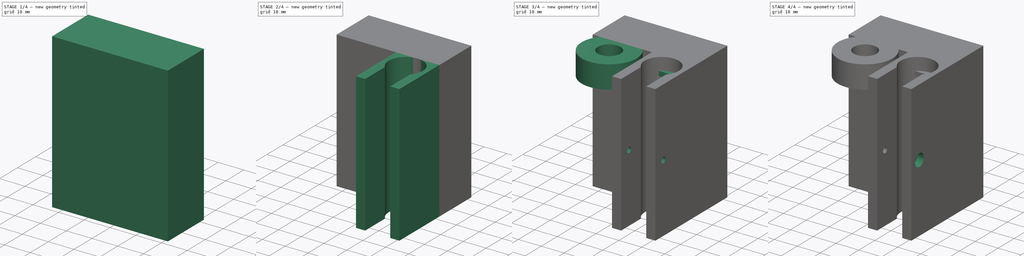
[diagram: build sequence overview — one tinted view per stage of 4, left to right]
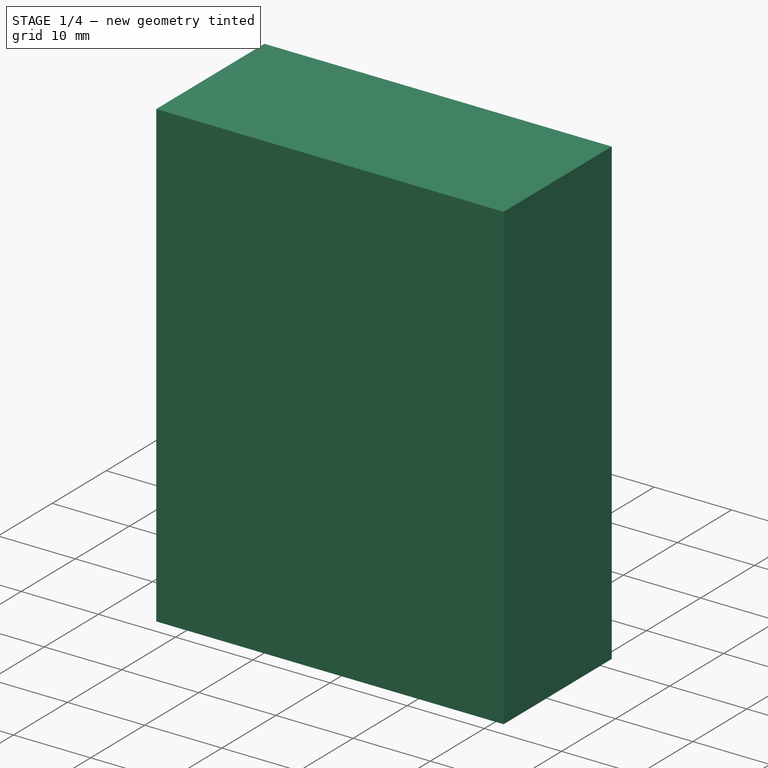
[diagram: stage 1 of 4 — iso view after this stage's code; geometry added in this stage tinted green]
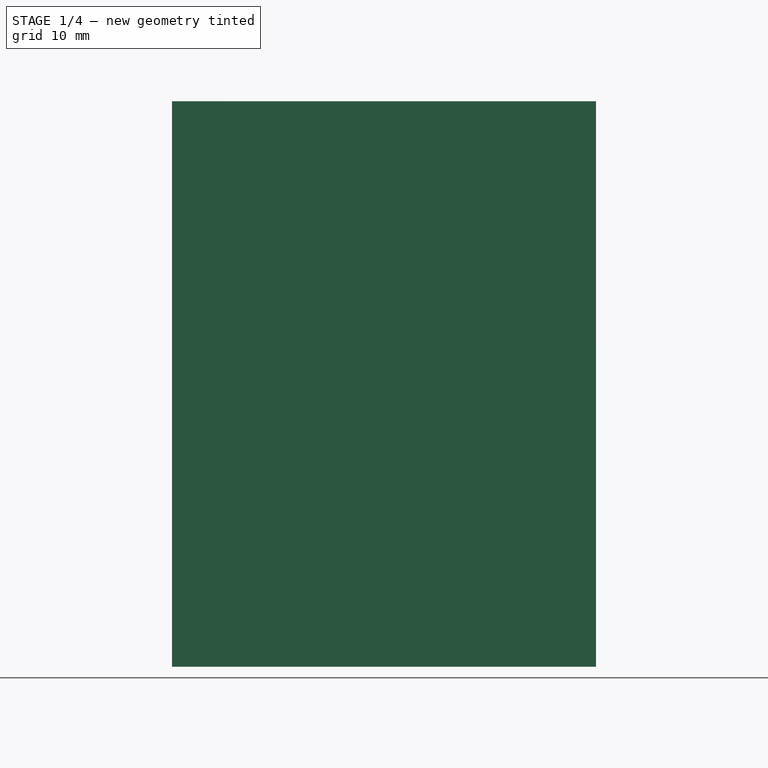
[diagram: stage 1 of 4 — front view after this stage's code; geometry added in this stage tinted green]
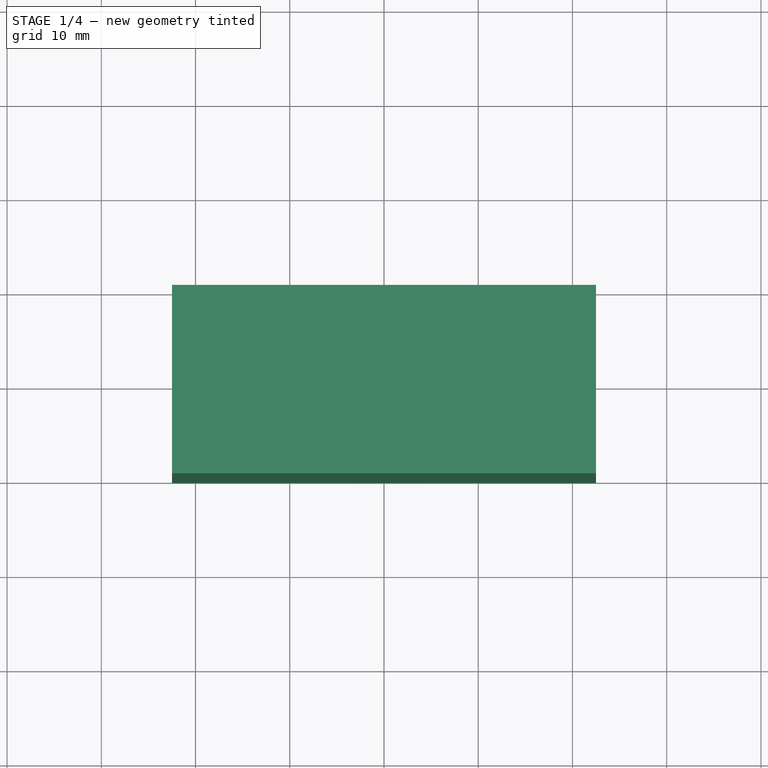
[diagram: stage 1 of 4 — top view after this stage's code; geometry added in this stage tinted green]
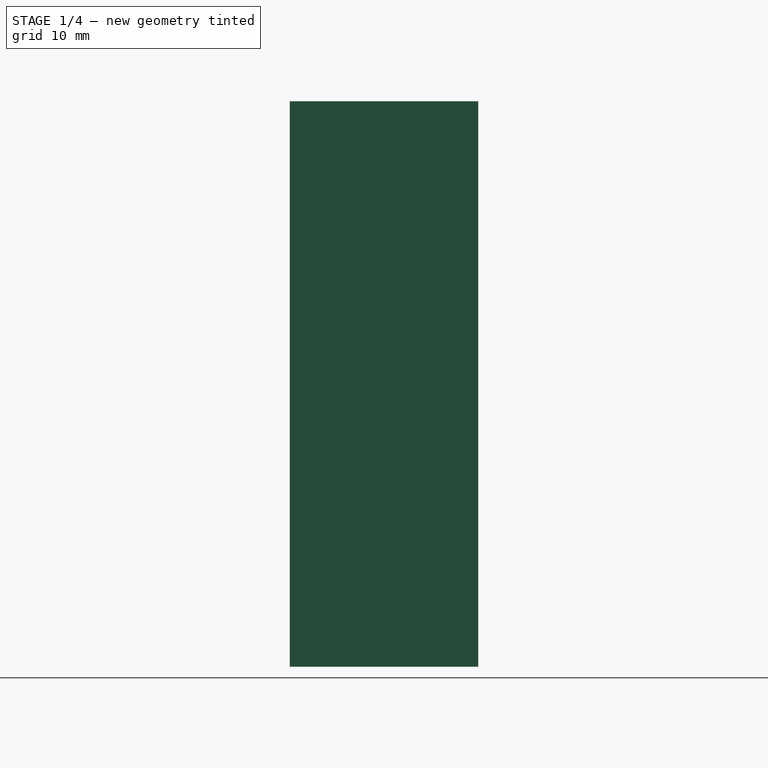
[diagram: stage 1 of 4 — right view after this stage's code; geometry added in this stage tinted green]
FCSTD DOCUMENT  (FreeCAD 0.18R4 (GitTag))
Label: ZAxisHolderRight
License: All rights reserved
LicenseURL: http://en.wikipedia.org/wiki/All_rights_reserved
objects: Sketcher::SketchObject×10, PartDesign::Pocket×6, PartDesign::Pad×4, Spreadsheet::Sheet×2, PartDesign::Body×1
note: 31 computed .brp shape members not serialized (recipe doc carries the construction recipe); baked Part::Feature solids carry a one-line shape summary decoded from their .brp

FEATURE [Sketcher::SketchObject] Sketch  label="Sketch_XAxisBox"
  MapMode = 5
  Placement = pos=(0,0,0) rot=(1,0,0;1.5708rad)
  Support = -> [XZ_Plane]
  expr: Constraints[11] = Dimensions.MainBoxHeight / 2
  expr: Constraints[10] = Dimensions.MainBoxWidth / 2
  expr: Constraints[9] = Dimensions.MainBoxHeight
  expr: Constraints[8] = Dimensions.MainBoxWidth
  sketch-geometry (4):
    g0: LineSegment StartX=-22.5 StartY=30 StartZ=0 EndX=22.5 EndY=30 EndZ=0
    g1: LineSegment StartX=22.5 StartY=30 StartZ=0 EndX=22.5 EndY=-30 EndZ=0
    g2: LineSegment StartX=22.5 StartY=-30 StartZ=0 EndX=-22.5 EndY=-30 EndZ=0
    g3: LineSegment StartX=-22.5 StartY=-30 StartZ=0 EndX=-22.5 EndY=30 EndZ=0
  constraints (12):
    c: Coincident(g0,g1)
    c: Coincident(g1,g2)
    c: Coincident(g2,g3)
    c: Coincident(g3,g0)
    c: Horizontal(g0)
    c: Horizontal(g2)
    c: Vertical(g1)
    c: Vertical(g3)
    c: DistanceX(g0,g0) = 45
    c: DistanceY(g3,g3) = 60
    c: DistanceX(g0,g-1) = 22.5
    c: DistanceY(g-1,g0) = 30
FEATURE [Spreadsheet::Sheet] Spreadsheet  label="Dimensions"
  cells = A1=MainBoxWidth; B1(MainBoxWidth)==45mm; A2=MainBoxHeight; B2(MainBoxHeight)==60mm; A3=MainBoxThickness; B3(MainBoxThickness)==20mm; A4=BeltMainBoxGapThickness; B4(BeltMainBoxGapThickness)==10mm; A5=BeltMainGapHeight; B5(BeltMainGapHeight)==20mm; A6=BeltMainGapWidth; B6(BeltMainGapWidth)==MainBoxWidth - 5mm; A7=XGuidesRadius; B7(XGuidesRadius)==4mm; A8=XGuidesSeparation; B8(XGuidesSeparation)==45mm; A9=XGuideHoleDepth; B9(XGuideHoleDepth)==MainBoxWidth - 5mm; A10=ZGuideRadius; B10(ZGuideRadius)==4mm; A11=ZGuideBoxWallThinThickness; B11(ZGuideBoxWallThinThickness)==2mm; A12=ZGuideBoxWallThickThickness; B12(ZGuideBoxWallThickThickness)==4mm; A13=ZGuideBoxWidth; B13(ZGuideBoxWidth)==LM8LUURadiusOuter * 2 + ZGuideBoxWallThinThickness * 2; A14=ZGuideBoxThickness; B14(ZGuideBoxThickness)==25mm; A15=LM8LUULength; B15(LM8LUULength)==45mm; A16=LM8LUURadiusOuter; B16(LM8LUURadiusOuter)==7.5mm; A17=LM8LUURadiusInner; B17(LM8LUURadiusInner)==4.2mm; A18=LM8LUUStopHeight; B18(LM8LUUStopHeight)==2mm; A19=LM8LUUStopThickness; B19(LM8LUUStopThickness)==2mm; A20=ZScrewRadius8mm; B20(ZScrewRadius8mm)==4mm; A21=ZScrewHolderInnerRadius; B21(ZScrewHolderInnerRadius)==5mm; A22=ZScrewHolderOuterRadius; B22(ZScrewHolderOuterRadius)==12mm; A23=ZScrewHolderHeight; B23(ZScrewHolderHeight)==10mm; A24=ZScrewToZGuideSeparation; B24(ZScrewToZGuideSeparation)==23mm; A25=ZScrewGuideToCentreOfMainBoxWidth; B25(ZScrewGuideToCentreOfMainBoxWidth)==-MainBoxWidth / 2 + ZGuideBoxWallThinThickness + LM8LUURadiusOuter + ZScrewToZGuideSeparation; A26=M3ToSide; B26(M3ToSide)==5mm
FEATURE [PartDesign::Pad] Pad  label="Pad_MainBox"
  Length = 20
  Length2 = 100
  Placement = pos=(0,0,0) rot=(1,0,0;1.5708rad)
  Profile = -> Sketch
  Type = 0
  expr: Length = Dimensions.MainBoxThickness
FEATURE [Sketcher::SketchObject] Sketch001  label="Sketch_XGuides"
  MapMode = 5
  Placement = pos=(-22.5,0,0) rot=(0.707107,0,-0.707107;3.14159rad)
  Support = -> [Pad]
  expr: Constraints[4] = Dimensions.XGuidesSeparation
  expr: Constraints[3] = Dimensions.MainBoxThickness / 2
  expr: Constraints[0] = Dimensions.XGuidesRadius
  sketch-geometry (2):
    g0: Circle CenterX=-22.5 CenterY=10 CenterZ=0 NormalX=0 NormalY=0 NormalZ=1 AngleXU=0 Radius=4
    g1: Circle CenterX=22.5 CenterY=10 CenterZ=0 NormalX=0 NormalY=0 NormalZ=1 AngleXU=0 Radius=4
  constraints (5):
    c: Radius(g0) = 4
    c: Radius(g1) = 4
    c: Symmetric(g0,g1,g-2)
    c: DistanceY(g-1,g0) = 10
    c: DistanceX(g0,g1) = 45
FEATURE [PartDesign::Pocket] Pocket  label="Pocket_XGuides"
  BaseFeature = -> Pad
  Length = 40
  Length2 = 100
  Placement = pos=(0,0,0) rot=(1,0,0;1.5708rad)
  Profile = -> Sketch001
  Type = 0
  expr: Length = Dimensions.XGuideHoleDepth
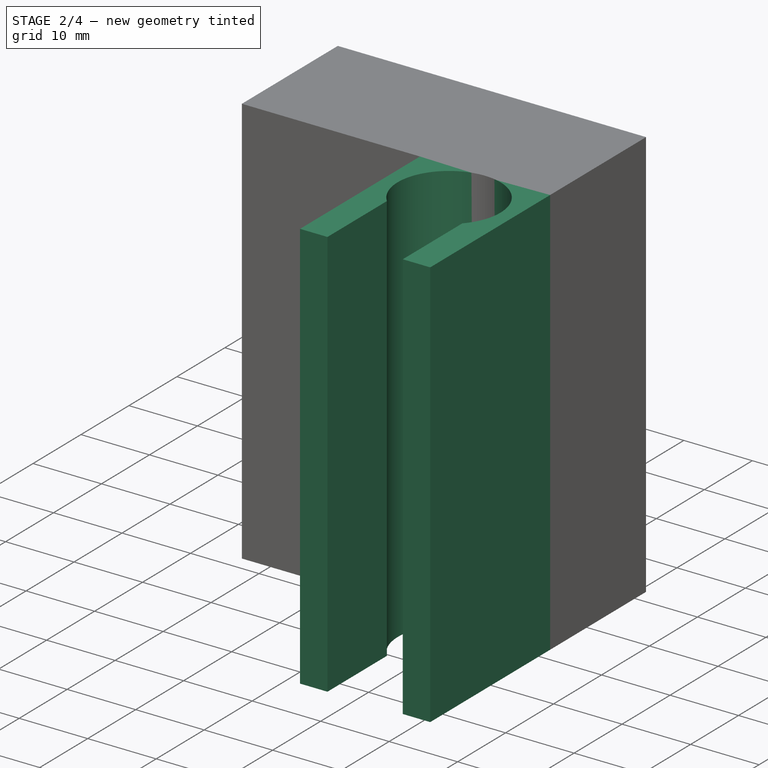
[diagram: stage 2 of 4 — iso view after this stage's code; geometry added in this stage tinted green]
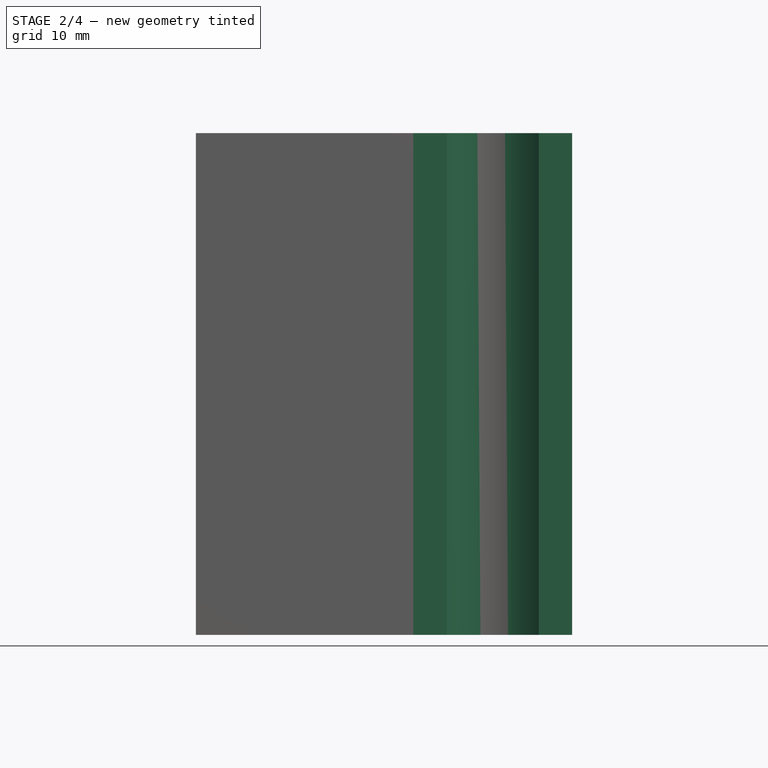
[diagram: stage 2 of 4 — front view after this stage's code; geometry added in this stage tinted green]
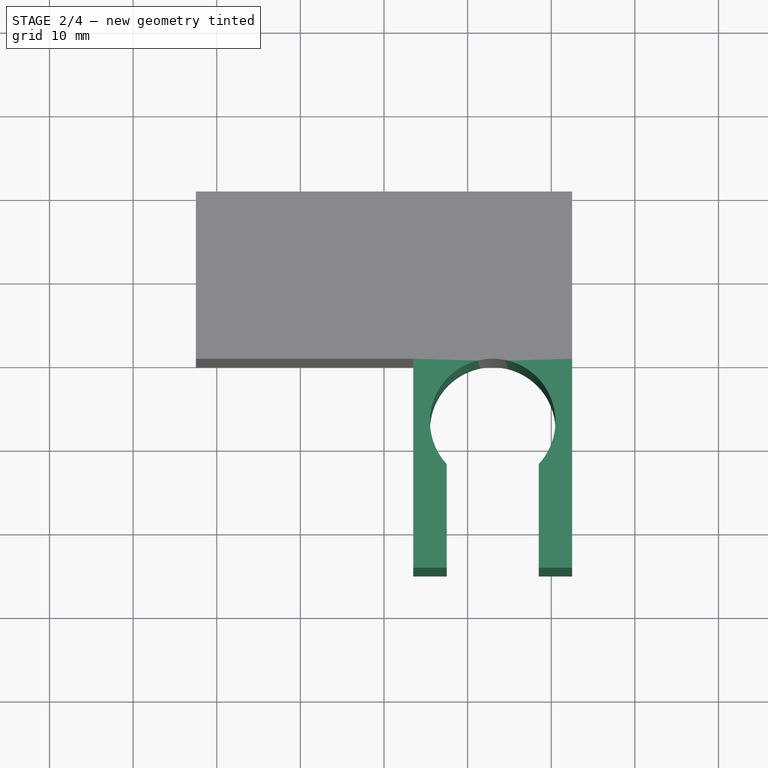
[diagram: stage 2 of 4 — top view after this stage's code; geometry added in this stage tinted green]
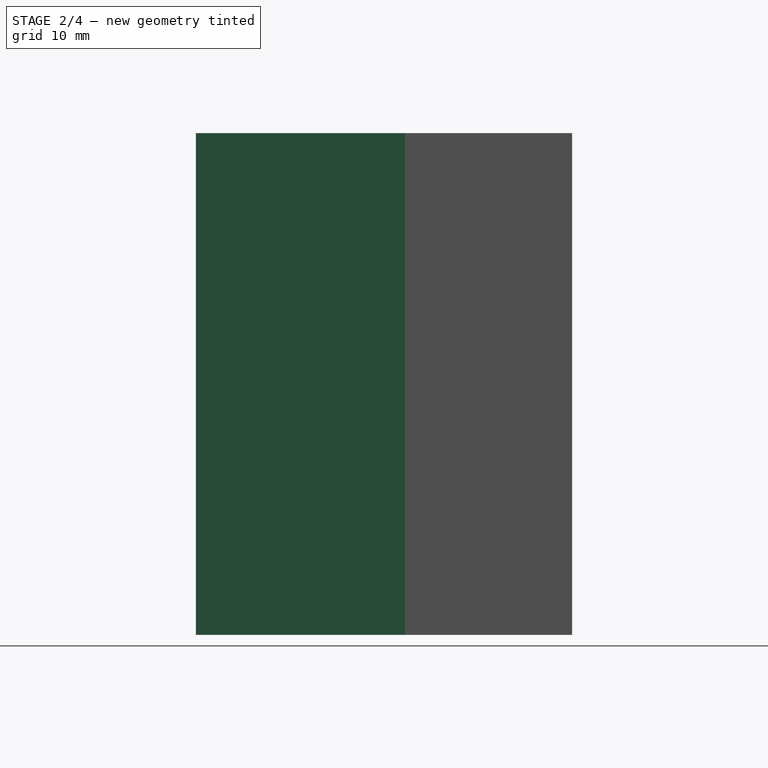
[diagram: stage 2 of 4 — right view after this stage's code; geometry added in this stage tinted green]
FEATURE [Sketcher::SketchObject] Sketch002  label="Sketch_BeltGap"
  MapMode = 5
  Placement = pos=(-22.5,0,0) rot=(0.707107,0,-0.707107;3.14159rad)
  Support = -> [Pocket]
  expr: Constraints[9] = Dimensions.BeltMainBoxGapThickness
  expr: Constraints[8] = Dimensions.BeltMainGapHeight
  sketch-geometry (4):
    g0: LineSegment StartX=-10.4624 StartY=15.4246 StartZ=0 EndX=9.53758 EndY=15.4246 EndZ=0
    g1: LineSegment StartX=9.53758 StartY=15.4246 StartZ=0 EndX=9.53758 EndY=5.42461 EndZ=0
    g2: LineSegment StartX=9.53758 StartY=5.42461 StartZ=0 EndX=-10.4624 EndY=5.42461 EndZ=0
    g3: LineSegment StartX=-10.4624 StartY=5.42461 StartZ=0 EndX=-10.4624 EndY=15.4246 EndZ=0
  constraints (10):
    c: Coincident(g0,g1)
    c: Coincident(g1,g2)
    c: Coincident(g2,g3)
    c: Coincident(g3,g0)
    c: Horizontal(g0)
    c: Horizontal(g2)
    c: Vertical(g1)
    c: Vertical(g3)
    c: DistanceX(g0,g0) = 20
    c: DistanceY(g3,g3) = 10
FEATURE [PartDesign::Pocket] Pocket001  label="Pocket_BeltGap"
  BaseFeature = -> Pocket
  Length = 40
  Length2 = 100
  Placement = pos=(0,0,0) rot=(1,0,0;1.5708rad)
  Profile = -> Sketch002
  Type = 0
  expr: Length = Dimensions.BeltMainGapWidth
FEATURE [Sketcher::SketchObject] Sketch003  label="Sketch_ZGuideBox"
  MapMode = 5
  Placement = pos=(0,-20,3.11e-14) rot=(1,0,0;1.5708rad)
  Support = -> [Pocket001]
  expr: Constraints[11] = Dimensions.MainBoxHeight / 2
  expr: Constraints[10] = Dimensions.MainBoxWidth / 2
  expr: Constraints[9] = Dimensions.ZGuideBoxWidth
  expr: Constraints[8] = Dimensions.MainBoxHeight
  sketch-geometry (4):
    g0: LineSegment StartX=3.5 StartY=30 StartZ=0 EndX=22.5 EndY=30 EndZ=0
    g1: LineSegment StartX=22.5 StartY=30 StartZ=0 EndX=22.5 EndY=-30 EndZ=0
    g2: LineSegment StartX=22.5 StartY=-30 StartZ=0 EndX=3.5 EndY=-30 EndZ=0
    g3: LineSegment StartX=3.5 StartY=-30 StartZ=0 EndX=3.5 EndY=30 EndZ=0
  constraints (12):
    c: Coincident(g0,g1)
    c: Coincident(g1,g2)
    c: Coincident(g2,g3)
    c: Coincident(g3,g0)
    c: Horizontal(g0)
    c: Horizontal(g2)
    c: Vertical(g1)
    c: Vertical(g3)
    c: DistanceY(g1,g1) = 60
    c: DistanceX(g0,g0) = 19
    c: DistanceX(g-1,g0) = 22.5
    c: DistanceY(g-1,g0) = 30
FEATURE [PartDesign::Pad] Pad001  label="Pad_ZGuideBox"
  BaseFeature = -> Pocket001
  Length = 25
  Length2 = 100
  Placement = pos=(0,0,0) rot=(1,0,0;1.5708rad)
  Profile = -> Sketch003
  Type = 0
  expr: Length = Spreadsheet.ZGuideBoxThickness
FEATURE [Sketcher::SketchObject] Sketch004  label="Sketch_LM8LUUHole"
  MapMode = 5
  Placement = pos=(0,6.66e-14,30) rot=(0,0,1;3.14159rad)
  Support = -> [Pad001]
  expr: Constraints[11] = Dimensions.MainBoxWidth / 2 - Dimensions.ZGuideBoxWallThinThickness - Dimensions.LM8LUURadiusOuter
  expr: Constraints[9] = Dimensions.MainBoxThickness + Dimensions.LM8LUURadiusOuter
  expr: Constraints[7] = Dimensions.MainBoxThickness + Dimensions.ZGuideBoxThickness
  expr: Constraints[10] = Dimensions.LM8LUURadiusOuter
  expr: Constraints[5] = Dimensions.MainBoxWidth / 2 - Dimensions.ZGuideBoxWallThickThickness
  expr: Constraints[6] = Dimensions.MainBoxWidth / 2 - Dimensions.ZGuideBoxWidth + Dimensions.ZGuideBoxWallThickThickness
  sketch-geometry (4):
    g0: LineSegment StartX=-18.5 StartY=45 StartZ=0 EndX=-7.5 EndY=45 EndZ=0
    g1: LineSegment StartX=-7.5 StartY=45 StartZ=0 EndX=-7.5 EndY=32.599 EndZ=0
    g2: LineSegment StartX=-18.5 StartY=32.599 StartZ=0 EndX=-18.5 EndY=45 EndZ=0
    g3: ArcOfCircle CenterX=-13 CenterY=27.5 CenterZ=0 NormalX=0 NormalY=0 NormalZ=1 AngleXU=0 Radius=7.5 StartAngle=2.39401 EndAngle=7.03077
  constraints (13):
    c: Coincident(g0,g1)
    c: Coincident(g2,g0)
    c: Horizontal(g0)
    c: Vertical(g1)
    c: Vertical(g2)
    c: DistanceX(g0,g-1) = 18.5
    c: DistanceX(g0,g-1) = 7.5
    c: DistanceY(g-1,g0) = 45
    c: Coincident(g3,g1)
    c: DistanceY(g-1,g3) = 27.5
    c: Radius(g3) = 7.5
    c: DistanceX(g3,g-1) = 13
    c: Coincident(g3,g2)
FEATURE [PartDesign::Pocket] Pocket002  label="Pocket_LM8LUUHole"
  BaseFeature = -> Pad001
  Length = 0
  Length2 = 100
  Placement = pos=(0,0,0) rot=(1,0,0;1.5708rad)
  Profile = -> Sketch004
  Type = 2
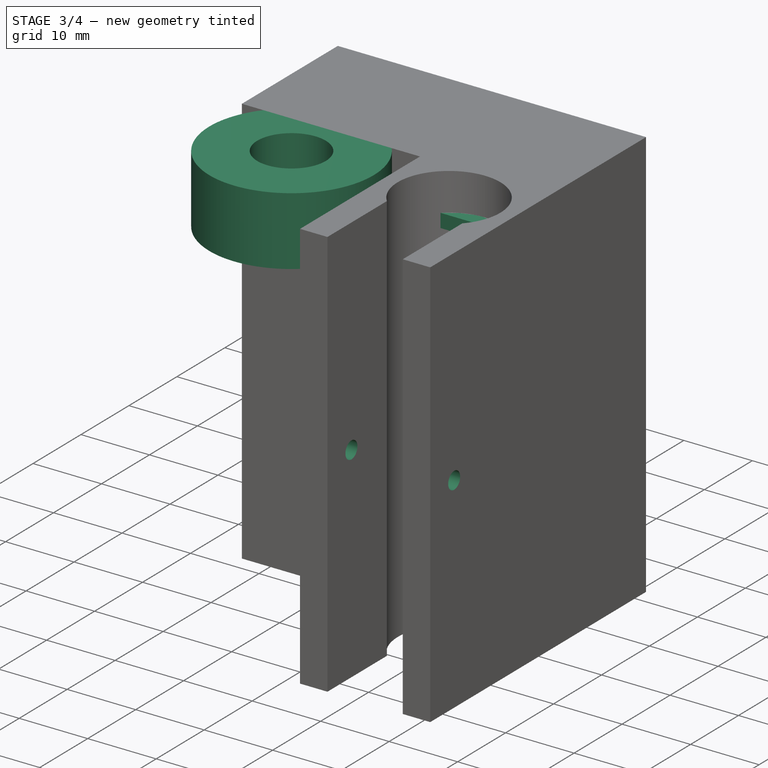
[diagram: stage 3 of 4 — iso view after this stage's code; geometry added in this stage tinted green]
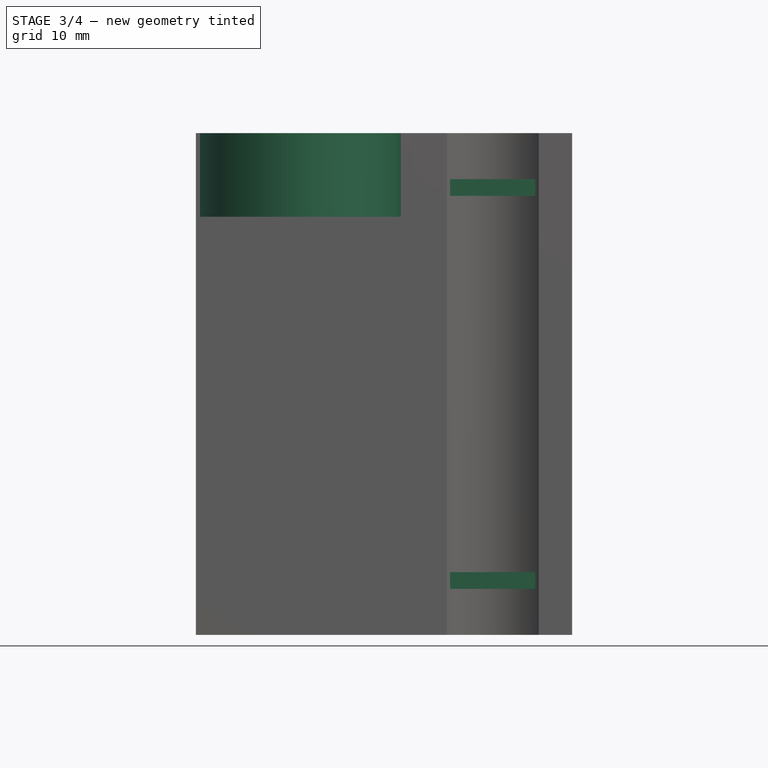
[diagram: stage 3 of 4 — front view after this stage's code; geometry added in this stage tinted green]
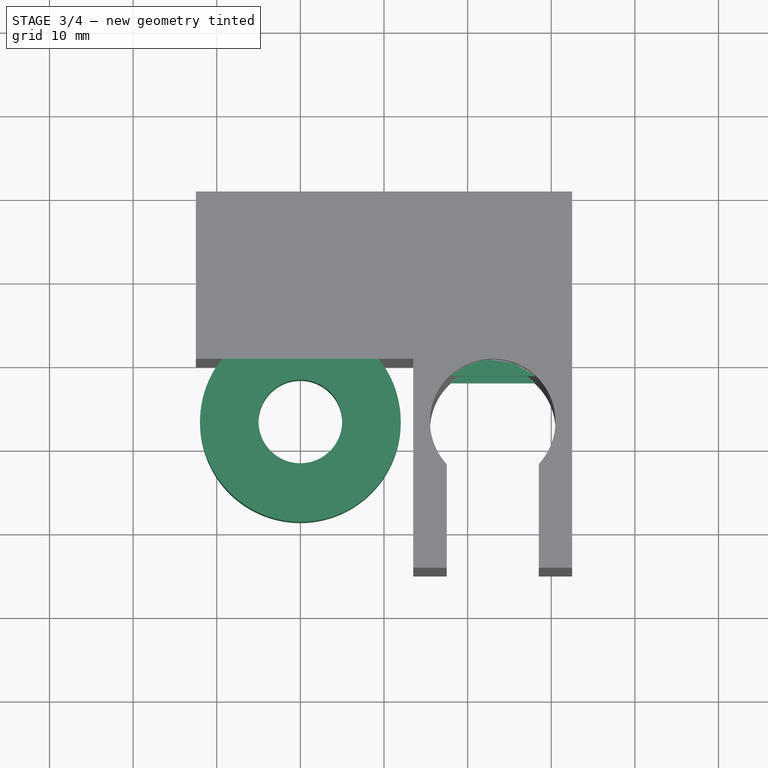
[diagram: stage 3 of 4 — top view after this stage's code; geometry added in this stage tinted green]
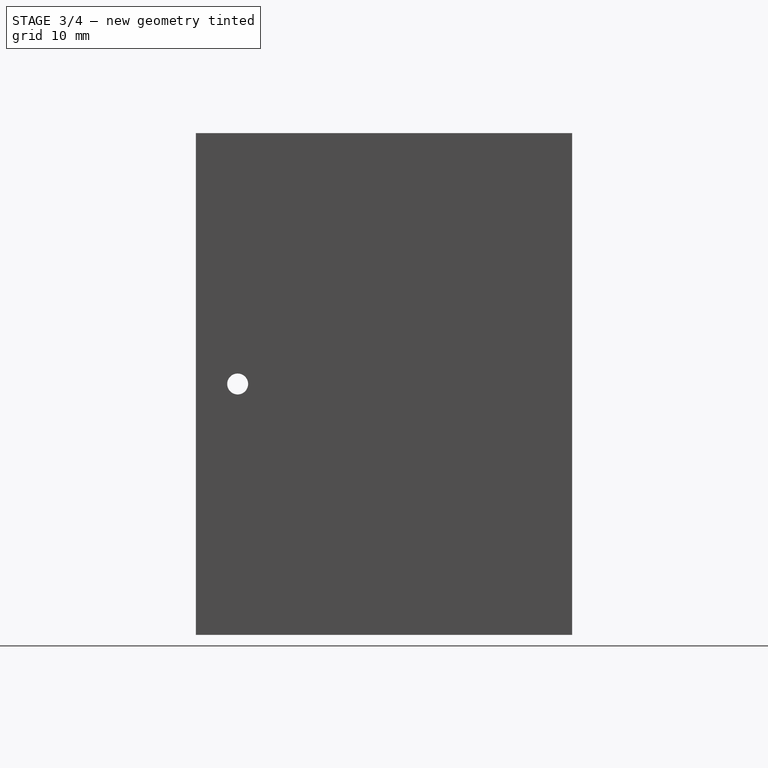
[diagram: stage 3 of 4 — right view after this stage's code; geometry added in this stage tinted green]
FEATURE [Sketcher::SketchObject] Sketch005  label="Sketch_LM8LUUStoppers"
  MapMode = 5
  Placement = pos=(0,-20,4.88e-14) rot=(1,0,0;1.5708rad)
  Support = -> [Pocket002]
  expr: Constraints[20] = Dimensions.LM8LUULength
  expr: Constraints[19] = Spreadsheet.LM8LUUStopHeight
  expr: Constraints[18] = Spreadsheet.LM8LUUStopHeight
  expr: Constraints[21] = Dimensions.MainBoxWidth / 2
  expr: Constraints[17] = Dimensions.ZGuideBoxWidth
  expr: Constraints[16] = Dimensions.ZGuideBoxWidth
  sketch-geometry (8):
    g0: LineSegment StartX=3.5 StartY=24.5 StartZ=0 EndX=22.5 EndY=24.5 EndZ=0
    g1: LineSegment StartX=22.5 StartY=24.5 StartZ=0 EndX=22.5 EndY=22.5 EndZ=0
    g2: LineSegment StartX=22.5 StartY=22.5 StartZ=0 EndX=3.5 EndY=22.5 EndZ=0
    g3: LineSegment StartX=3.5 StartY=22.5 StartZ=0 EndX=3.5 EndY=24.5 EndZ=0
    g4: LineSegment StartX=3.5 StartY=-22.5 StartZ=0 EndX=22.5 EndY=-22.5 EndZ=0
    g5: LineSegment StartX=22.5 StartY=-22.5 StartZ=0 EndX=22.5 EndY=-24.5 EndZ=0
    g6: LineSegment StartX=22.5 StartY=-24.5 StartZ=0 EndX=3.5 EndY=-24.5 EndZ=0
    g7: LineSegment StartX=3.5 StartY=-24.5 StartZ=0 EndX=3.5 EndY=-22.5 EndZ=0
  constraints (23):
    c: Coincident(g0,g1)
    c: Coincident(g1,g2)
    c: Coincident(g2,g3)
    c: Coincident(g3,g0)
    c: Horizontal(g0)
    c: Horizontal(g2)
    c: Vertical(g1)
    c: Vertical(g3)
    c: Coincident(g4,g5)
    c: Coincident(g5,g6)
    c: Coincident(g6,g7)
    c: Coincident(g7,g4)
    c: Horizontal(g4)
    c: Horizontal(g6)
    c: Vertical(g5)
    c: Vertical(g7)
    c: DistanceX(g0,g0) = 19
    c: DistanceX(g4,g4) = 19
    c: DistanceY(g1,g1) = 2
    c: DistanceY(g5,g5) = 2
    c: DistanceY(g4,g2) = 45
    c: DistanceX(g-1,g1) = 22.5
    c: Symmetric(g4,g2,g-1)
FEATURE [PartDesign::Pad] Pad002  label="Pad_LM8UUStoppers"
  BaseFeature = -> Pocket002
  Length = 2
  Length2 = 100
  Placement = pos=(0,0,0) rot=(1,0,0;1.5708rad)
  Profile = -> Sketch005
  Type = 0
  expr: Length = Dimensions.LM8LUUStopThickness
FEATURE [Sketcher::SketchObject] Sketch006  label="Sketch_ZScrewGuide"
  MapMode = 5
  Placement = pos=(0,8.66e-14,30) rot=(0,0,1;3.14159rad)
  Support = -> [Pad002]
  expr: Constraints[4] = Dimensions.ZScrewGuideToCentreOfMainBoxWidth
  expr: Constraints[3] = Dimensions.MainBoxThickness + Dimensions.LM8LUURadiusOuter
  expr: Constraints[2] = Dimensions.ZScrewHolderOuterRadius
  expr: Constraints[1] = Dimensions.ZScrewHolderInnerRadius
  sketch-geometry (2):
    g0: Circle CenterX=10 CenterY=27.5 CenterZ=0 NormalX=0 NormalY=0 NormalZ=1 AngleXU=0 Radius=12
    g1: Circle CenterX=10 CenterY=27.5 CenterZ=0 NormalX=0 NormalY=0 NormalZ=1 AngleXU=0 Radius=5
  constraints (5):
    c: Coincident(g1,g0)
    c: Radius(g1) = 5
    c: Radius(g0) = 12
    c: DistanceY(g-1,g0) = 27.5
    c: DistanceX(g-1,g0) = 10
FEATURE [PartDesign::Pad] Pad003  label="Pad_ZScrewGuide"
  BaseFeature = -> Pad002
  Length = 10
  Length2 = 100
  Placement = pos=(0,0,0) rot=(1,0,0;1.5708rad)
  Profile = -> Sketch006
  Reversed = true
  Type = 0
  expr: Length = Dimensions.ZScrewHolderHeight
FEATURE [Spreadsheet::Sheet] Spreadsheet001  label="M3"
  cells = A1=M3ThreadRadius; B1(M3ThreadRadius)==1.25mm; A2=M3HeadRadius; B2(M3HeadRadius)==5.5mm / 2; A3=M3HeadHeight; B3(M3HeadHeight)==3mm; A4=M3NutFlatToFlat_S; B4(M3NutFlatToFlat_S)==5.5mm; A5=M3NutThickness; B5(M3NutThickness)==2.4mm
FEATURE [Sketcher::SketchObject] Sketch007  label="Sketch_M3_LM8LUUHolder"
  MapMode = 5
  Placement = pos=(22.5,0,0) rot=(0.707107,0,0.707107;3.14159rad)
  Support = -> [Pad003]
  expr: Constraints[2] = Dimensions.MainBoxThickness + Dimensions.ZGuideBoxThickness - Dimensions.M3ToSide
  expr: Constraints[1] = M3.M3ThreadRadius
  sketch-geometry (1):
    g0: Circle CenterX=0 CenterY=40 CenterZ=0 NormalX=0 NormalY=0 NormalZ=1 AngleXU=0 Radius=1.25
  constraints (3):
    c: PointOnObject(g0,g-2)
    c: Radius(g0) = 1.25
    c: DistanceY(g-1,g0) = 40
FEATURE [PartDesign::Pocket] Pocket003  label="Pocket_M3_LM8LUUHolder"
  BaseFeature = -> Pad003
  Length = 5
  Length2 = 100
  Placement = pos=(0,0,0) rot=(1,0,0;1.5708rad)
  Profile = -> Sketch007
  Type = 1
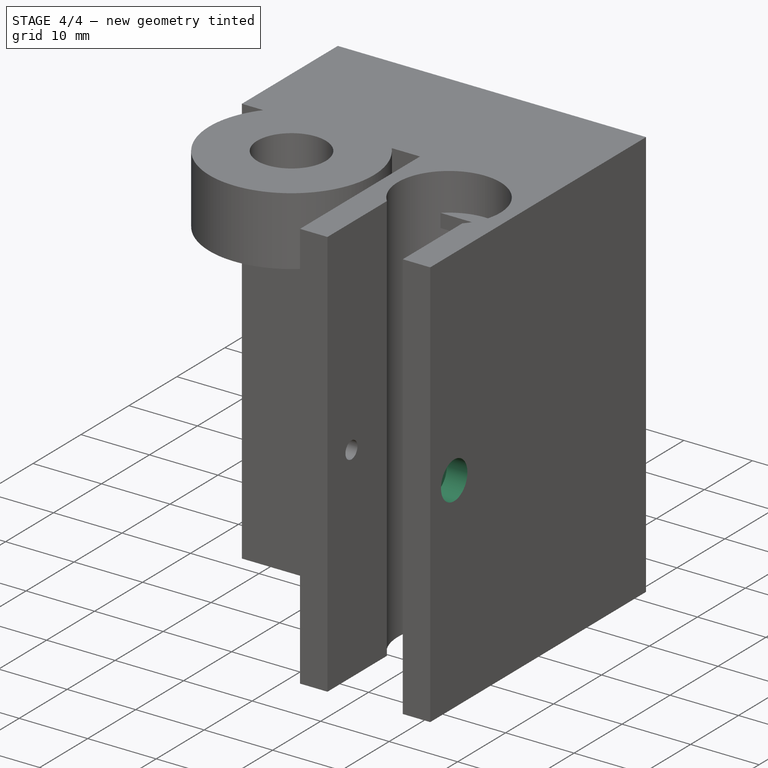
[diagram: stage 4 of 4 — iso view after this stage's code; geometry added in this stage tinted green]
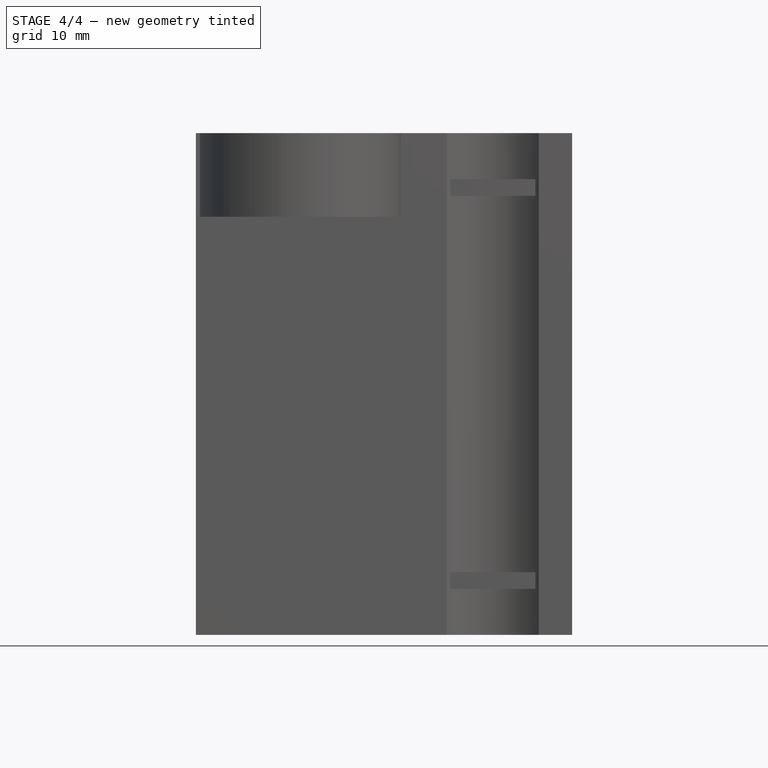
[diagram: stage 4 of 4 — front view after this stage's code; geometry added in this stage tinted green]
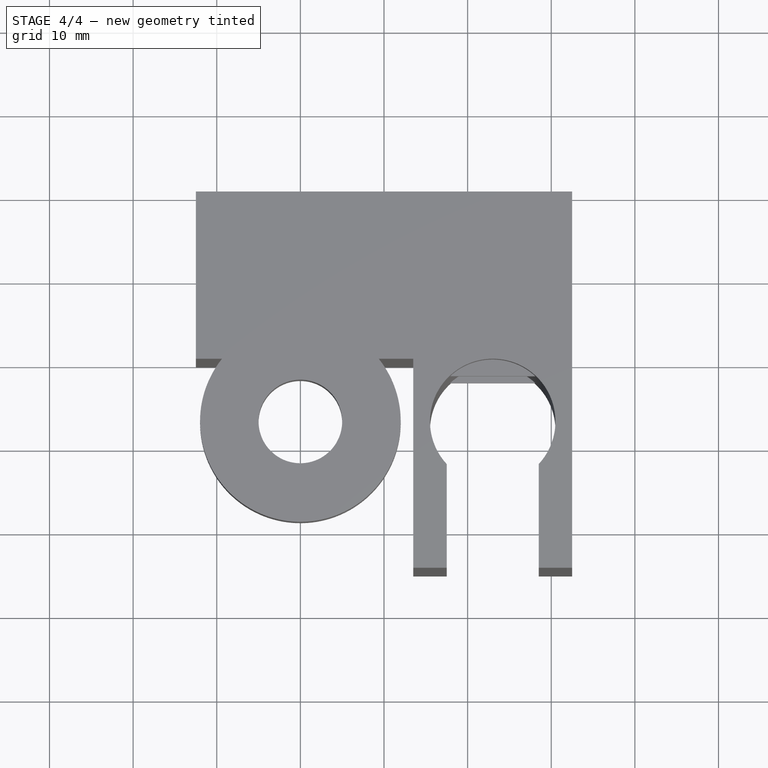
[diagram: stage 4 of 4 — top view after this stage's code; geometry added in this stage tinted green]
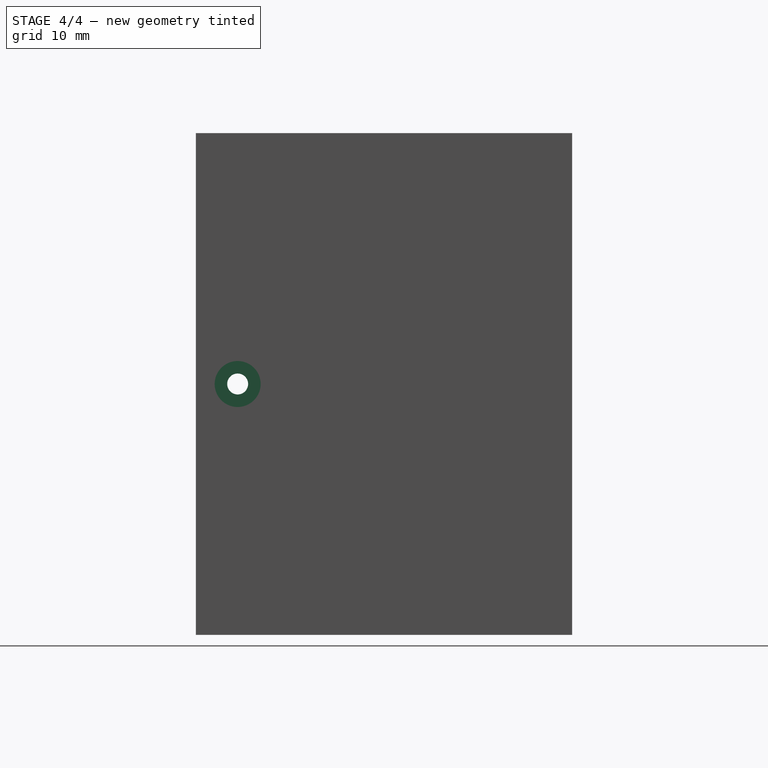
[diagram: stage 4 of 4 — right view after this stage's code; geometry added in this stage tinted green]
FEATURE [Sketcher::SketchObject] Sketch008  label="Sketch_M3_LM8LUUHolderHead"
  MapMode = 5
  Placement = pos=(22.5,0,0) rot=(0.707107,0,0.707107;3.14159rad)
  Support = -> [Pocket003]
  expr: Constraints[2] = Dimensions.MainBoxThickness + Dimensions.ZGuideBoxThickness - Dimensions.M3ToSide
  expr: Constraints[1] = M3.M3HeadRadius
  sketch-geometry (1):
    g0: Circle CenterX=0 CenterY=40 CenterZ=0 NormalX=0 NormalY=0 NormalZ=1 AngleXU=0 Radius=2.75
  constraints (3):
    c: PointOnObject(g0,g-2)
    c: Radius(g0) = 2.75
    c: DistanceY(g-1,g0) = 40
FEATURE [PartDesign::Pocket] Pocket004  label="Pocket_M3_LM8LUUHolderHead"
  BaseFeature = -> Pocket003
  Length = 3
  Length2 = 100
  Placement = pos=(0,0,0) rot=(1,0,0;1.5708rad)
  Profile = -> Sketch008
  Type = 0
  expr: Length = M3.M3HeadHeight
FEATURE [Sketcher::SketchObject] Sketch009  label="Sketch_M3_LM8LUUHolderNut"
  MapMode = 5
  Placement = pos=(3.5,0,0) rot=(0.707107,0,-0.707107;3.14159rad)
  Support = -> [Pocket004]
  expr: Constraints[20] = Dimensions.MainBoxThickness + Dimensions.ZGuideBoxThickness - Dimensions.M3ToSide
  expr: Constraints[18] = M3.M3NutFlatToFlat_S
  sketch-geometry (7):
    g0: LineSegment StartX=1.58771 StartY=37.25 StartZ=0 EndX=3.17543 EndY=40 EndZ=0
    g1: LineSegment StartX=3.17543 StartY=40 StartZ=0 EndX=1.58771 EndY=42.75 EndZ=0
    g2: LineSegment StartX=1.58771 StartY=42.75 StartZ=0 EndX=-1.58771 EndY=42.75 EndZ=0
    g3: LineSegment StartX=-1.58771 StartY=42.75 StartZ=0 EndX=-3.17543 EndY=40 EndZ=0
    g4: LineSegment StartX=-3.17543 StartY=40 StartZ=0 EndX=-1.58771 EndY=37.25 EndZ=0
    g5: LineSegment StartX=-1.58771 StartY=37.25 StartZ=0 EndX=1.58771 EndY=37.25 EndZ=0
    g6: Circle [constr] CenterX=0 CenterY=40 CenterZ=0 NormalX=0 NormalY=0 NormalZ=1 AngleXU=0 Radius=3.17543
  constraints (17):
    c: Coincident(g0,g1)
    c: Coincident(g1,g2)
    c: Coincident(g2,g3)
    c: Coincident(g3,g4)
    c: Coincident(g4,g5)
    c: Coincident(g5,g0)
    c: Equal(g0, g1-g5) x5
    c: PointOnObject(g0,g6)
    c: PointOnObject(g1,g6)
    c: PointOnObject(g2,g6)
    c: PointOnObject(g3,g6)
    c: PointOnObject(g4,g6)
    c: PointOnObject(g5,g6)
    c: Horizontal(g2)
    c: DistanceY(g0,g1) = 5.5
    c: Vertical(g6,g-1)
    c: DistanceY(g-1,g6) = 40
FEATURE [PartDesign::Pocket] Pocket005  label="Pocket_M3_LM8LUUHolderNut"
  BaseFeature = -> Pocket004
  Length = 2.4
  Length2 = 100
  Placement = pos=(0,0,0) rot=(1,0,0;1.5708rad)
  Profile = -> Sketch009
  Type = 0
  expr: Length = M3.M3NutThickness
FEATURE [PartDesign::Body] Body  label="Z Axis Holder Right"
  Group = -> [Sketch,Pad,Sketch001,Pocket,Sketch002,Pocket001,Sketch003,Pad001,Sketch004,Pocket002,Sketch005,Pad002,Sketch006,Pad003,Sketch007,Pocket003,Sketch008,Pocket004,Sketch009,Pocket005]
  Origin = -> Origin
  Tip = -> Pocket005
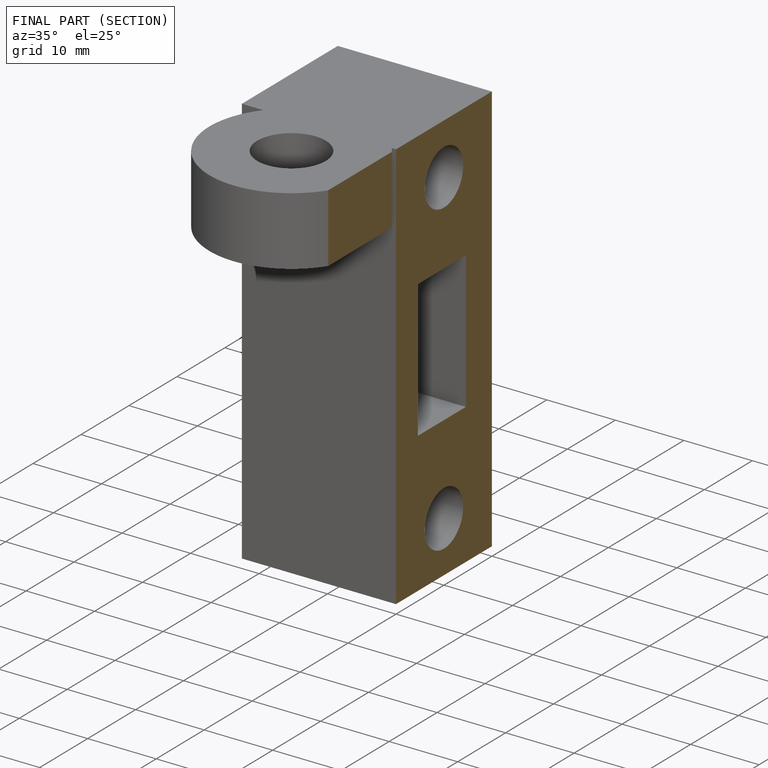
[diagram: finished part — half-section view (interior)]
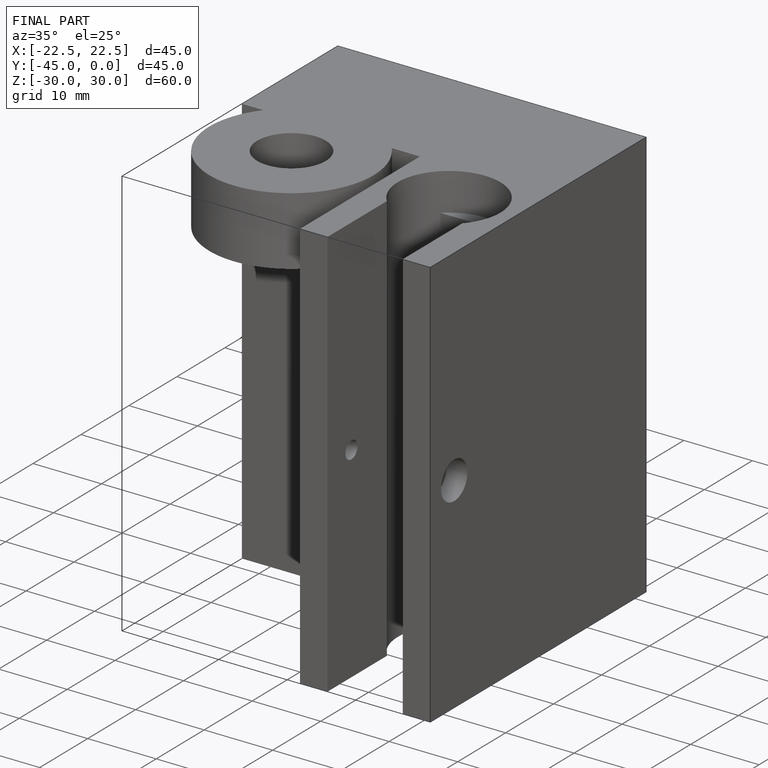
[diagram: finished part — iso view with bounding-box wireframe]
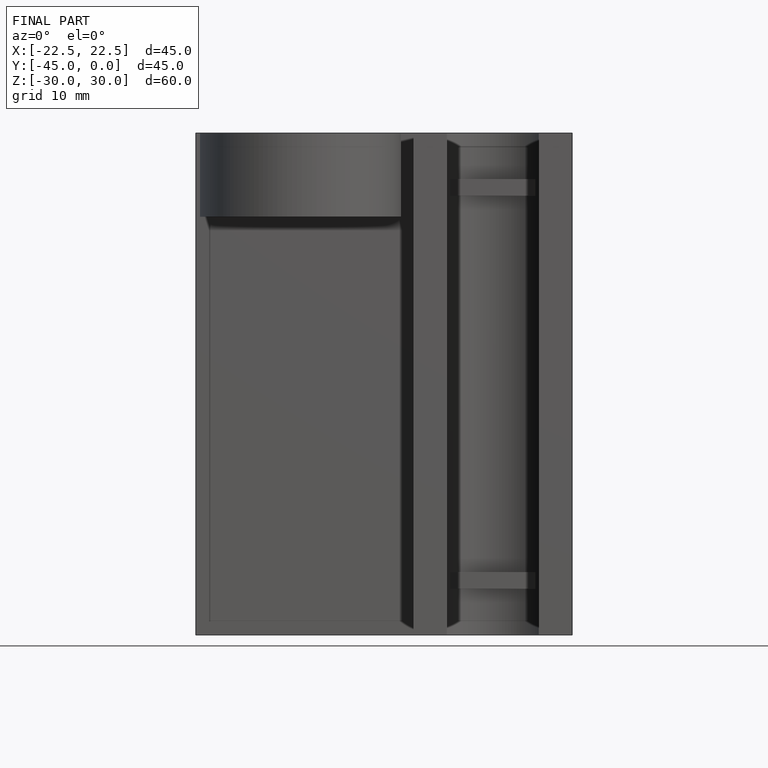
[diagram: finished part — front view with bounding-box wireframe]
